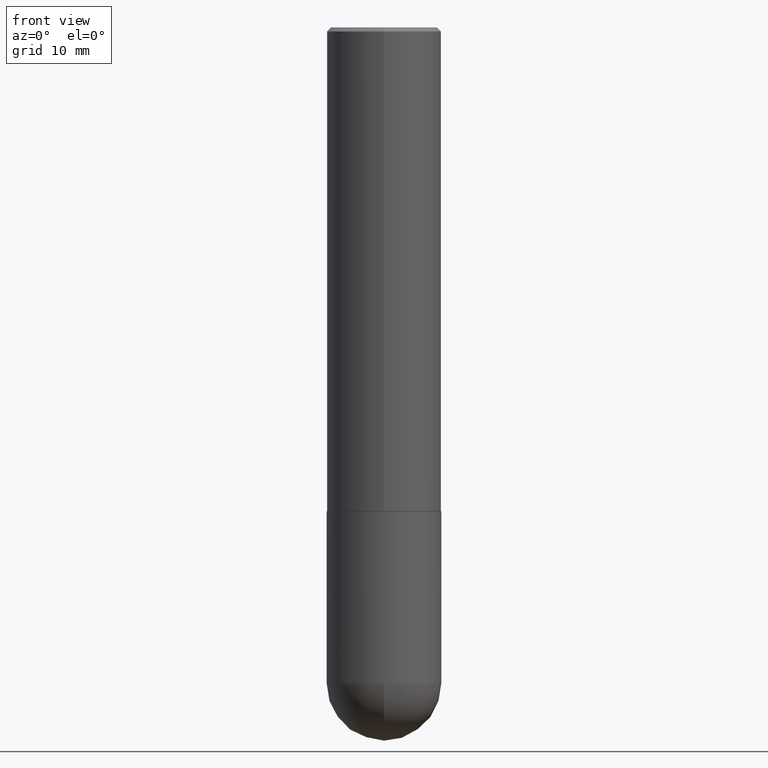
[diagram: clean part render]
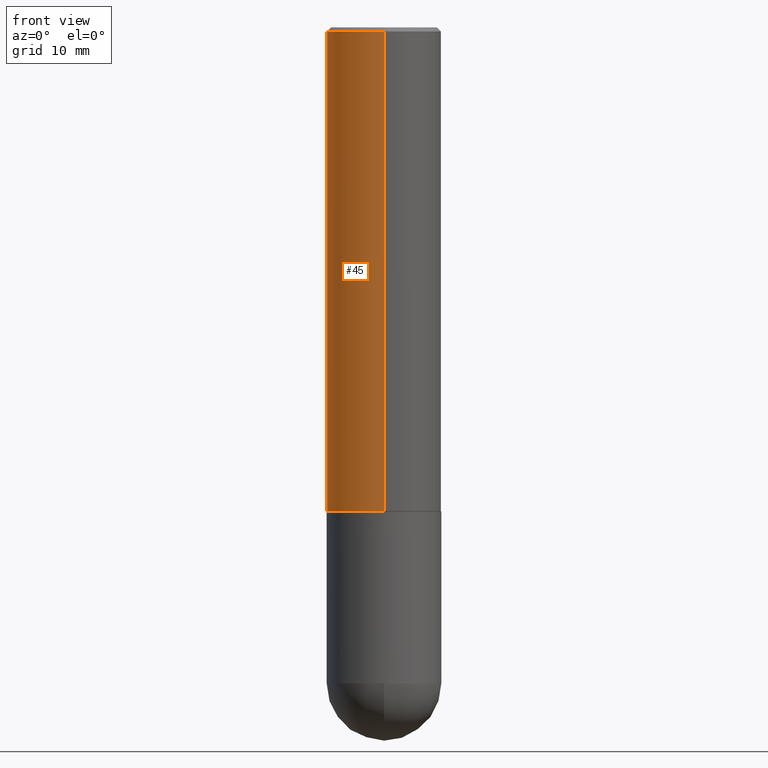
[diagram: same view with one face highlighted and labeled with its STEP entity id]
A machine part, front view. The second image highlights one B-rep face of the part: STEP entity #45.
In plain terms, the highlighted cylindrical surface (partial cylindrical patch) has radius 7.1438 mm, axis along (-0, 0, 1).
Its self-contained STEP definition (entity closure, byte-faithful):
#2 = CARTESIAN_POINT ( 'NONE',  ( 1.998401444325282167E-15, 0.2812500000000001110, -9.819798812686895501E-16 ) ) ;
#18 = DIRECTION ( 'NONE',  ( -2.445466932345140310E-29, 3.491484022288672597E-15, 1.000000000000000000 ) ) ;
#22 = VERTEX_POINT ( 'NONE', #66 ) ;
#25 = CYLINDRICAL_SURFACE ( 'NONE', #200, 0.2812500000000001110 ) ;
#27 = DIRECTION ( 'NONE',  ( -2.445466932345140310E-29, 3.491484022288672597E-15, 1.000000000000000000 ) ) ;
#29 = FACE_OUTER_BOUND ( 'NONE', #273, .T. ) ;
#45 = ADVANCED_FACE ( 'NONE', ( #29 ), #25, .T. ) ;
#47 = EDGE_CURVE ( 'NONE', #112, #340, #284, .T. ) ;
#49 = AXIS2_PLACEMENT_3D ( 'NONE', #310, #18, #142 ) ;
#54 = CARTESIAN_POINT ( 'NONE',  ( -1.963958253099263301E-15, -0.2812500000000001110, 9.819798812686895501E-16 ) ) ;
#65 = CARTESIAN_POINT ( 'NONE',  ( 0.000000000000000000, 0.000000000000000000, 0.000000000000000000 ) ) ;
#66 = CARTESIAN_POINT ( 'NONE',  ( -1.963958253099205714E-15, -0.2812500000000085487, -2.373999999999998334 ) ) ;
#90 = ORIENTED_EDGE ( 'NONE', *, *, #259, .T. ) ;
#100 = VECTOR ( 'NONE', #127, 39.37007874015748143 ) ;
#105 = CIRCLE ( 'NONE', #49, 0.2812500000000002220 ) ;
#112 = VERTEX_POINT ( 'NONE', #218 ) ;
#119 = CARTESIAN_POINT ( 'NONE',  ( -1.929515061873242463E-15, -0.2812500000000000555, -0.01999999999999908101 ) ) ;
#127 = DIRECTION ( 'NONE',  ( -2.445466932345140310E-29, 3.491484022288672992E-15, 1.000000000000000000 ) ) ;
#128 = AXIS2_PLACEMENT_3D ( 'NONE', #341, #27, #235 ) ;
#136 = ORIENTED_EDGE ( 'NONE', *, *, #47, .F. ) ;
#142 = DIRECTION ( 'NONE',  ( -6.982962677686265133E-15, -1.000000000000000000, 3.885294924322504533E-15 ) ) ;
#160 = CIRCLE ( 'NONE', #128, 0.2812499999999999445 ) ;
#163 = DIRECTION ( 'NONE',  ( -6.982962677686266711E-15, -1.000000000000000000, 3.491484022288672597E-15 ) ) ;
#180 = DIRECTION ( 'NONE',  ( -2.445466932345140310E-29, 3.491484022288672992E-15, 1.000000000000000000 ) ) ;
#200 = AXIS2_PLACEMENT_3D ( 'NONE', #65, #281, #163 ) ;
#201 = VECTOR ( 'NONE', #180, 39.37007874015748143 ) ;
#214 = LINE ( 'NONE', #54, #201 ) ;
#218 = CARTESIAN_POINT ( 'NONE',  ( 1.998401444325312144E-15, 0.2812499999999919509, -2.374000000000000554 ) ) ;
#235 = DIRECTION ( 'NONE',  ( -6.982962677686266711E-15, -1.000000000000000000, 3.490694658571003593E-15 ) ) ;
#259 = EDGE_CURVE ( 'NONE', #112, #22, #105, .T. ) ;
#273 = EDGE_LOOP ( 'NONE', ( #136, #90, #299, #371 ) ) ;
#281 = DIRECTION ( 'NONE',  ( -2.445466932345140310E-29, 3.491484022288672597E-15, 1.000000000000000000 ) ) ;
#284 = LINE ( 'NONE', #2, #100 ) ;
#299 = ORIENTED_EDGE ( 'NONE', *, *, #396, .T. ) ;
#310 = CARTESIAN_POINT ( 'NONE',  ( 5.805538497387361922E-29, -8.288783068913306238E-15, -2.373999999999999222 ) ) ;
#312 = EDGE_CURVE ( 'NONE', #340, #404, #160, .T. ) ;
#340 = VERTEX_POINT ( 'NONE', #376 ) ;
#341 = CARTESIAN_POINT ( 'NONE',  ( 4.890933864690296280E-31, -6.982968044577367529E-17, -0.02000000000000006287 ) ) ;
#371 = ORIENTED_EDGE ( 'NONE', *, *, #312, .F. ) ;
#376 = CARTESIAN_POINT ( 'NONE',  ( 1.963958253099262512E-15, 0.2812499999999998890, -0.02000000000000104472 ) ) ;
#396 = EDGE_CURVE ( 'NONE', #22, #404, #214, .T. ) ;
#404 = VERTEX_POINT ( 'NONE', #119 ) ;